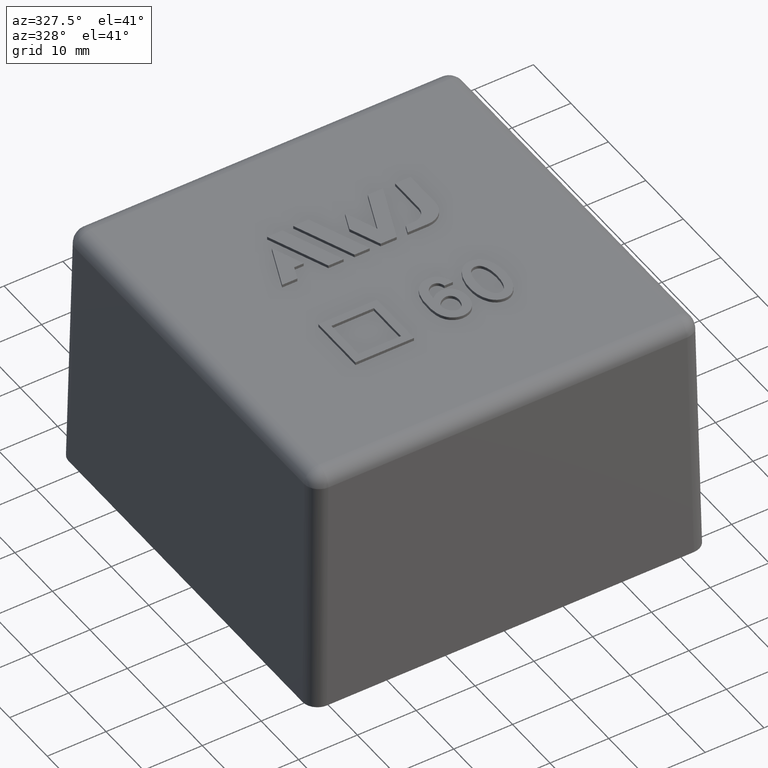
[diagram: clean part render]
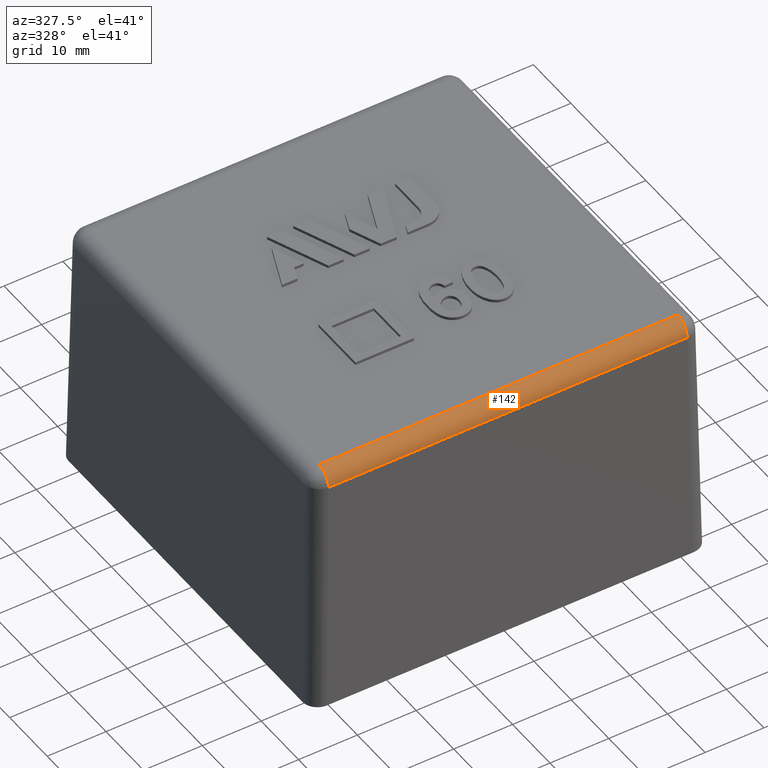
[diagram: same view with one face highlighted and labeled with its STEP entity id]
A machine part, auxiliary view. The second image highlights one B-rep face of the part: STEP entity #142.
In plain terms, the highlighted cylindrical surface (edge-blend (fillet) strip) has radius 2.5325 mm, axis along (-1, 0, 0).
Its self-contained STEP definition (entity closure, byte-faithful):
#142 = ADVANCED_FACE( '', ( #302 ), #303, .T. );
#302 = FACE_OUTER_BOUND( '', #479, .T. );
#303 = CYLINDRICAL_SURFACE( '', #480, 2.53250000000000 );
#479 = EDGE_LOOP( '', ( #1083, #1084, #1085, #1086 ) );
#480 = AXIS2_PLACEMENT_3D( '', #1087, #1088, #1089 );
#1083 = ORIENTED_EDGE( '', *, *, #1323, .T. );
#1084 = ORIENTED_EDGE( '', *, *, #1321, .F. );
#1085 = ORIENTED_EDGE( '', *, *, #1324, .F. );
#1086 = ORIENTED_EDGE( '', *, *, #1162, .F. );
#1087 = CARTESIAN_POINT( '', ( -33.7329000000000, -30.4927349983374, 40.5200000000000 ) );
#1088 = DIRECTION( '', ( -1.00000000000000, 0.000000000000000, 0.000000000000000 ) );
#1089 = DIRECTION( '', ( 0.000000000000000, 0.000000000000000, -1.00000000000000 ) );
#1162 = EDGE_CURVE( '', #1344, #1345, #1346, .F. );
#1321 = EDGE_CURVE( '', #1608, #1610, #1611, .F. );
#1323 = EDGE_CURVE( '', #1344, #1610, #1613, .T. );
#1324 = EDGE_CURVE( '', #1345, #1608, #1614, .T. );
#1344 = VERTEX_POINT( '', #1670 );
#1345 = VERTEX_POINT( '', #1671 );
#1346 = LINE( '', #1672, #1673 );
#1608 = VERTEX_POINT( '', #2201 );
#1610 = VERTEX_POINT( '', #2204 );
#1611 = LINE( '', #2205, #2206 );
#1613 = CIRCLE( '', #2209, 2.53250000000000 );
#1614 = CIRCLE( '', #2210, 2.53250000000000 );
#1670 = CARTESIAN_POINT( '', ( -30.4927349983374, -30.4927349983374, 43.0525000000000 ) );
#1671 = CARTESIAN_POINT( '', ( 30.4927349983374, -30.4927349983374, 43.0525000000000 ) );
#1672 = CARTESIAN_POINT( '', ( 30.4493015291943, -30.4927349983374, 43.0525000000000 ) );
#1673 = VECTOR( '', #2234, 1000.00000000000 );
#2201 = CARTESIAN_POINT( '', ( 30.4927349983374, -33.0248492863210, 40.5641982193024 ) );
#2204 = CARTESIAN_POINT( '', ( -30.4927349983374, -33.0248492863210, 40.5641982193024 ) );
#2205 = CARTESIAN_POINT( '', ( -30.4493015291943, -33.0248492863210, 40.5641982193024 ) );
#2206 = VECTOR( '', #2395, 1000.00000000000 );
#2209 = AXIS2_PLACEMENT_3D( '', #2397, #2398, #2399 );
#2210 = AXIS2_PLACEMENT_3D( '', #2400, #2401, #2402 );
#2234 = DIRECTION( '', ( -1.00000000000000, 0.000000000000000, 0.000000000000000 ) );
#2395 = DIRECTION( '', ( 1.00000000000000, 0.000000000000000, 0.000000000000000 ) );
#2397 = CARTESIAN_POINT( '', ( -30.4927349983374, -30.4927349983374, 40.5200000000000 ) );
#2398 = DIRECTION( '', ( 1.00000000000000, 0.000000000000000, 0.000000000000000 ) );
#2399 = DIRECTION( '', ( 0.000000000000000, 0.000000000000000, -1.00000000000000 ) );
#2400 = CARTESIAN_POINT( '', ( 30.4927349983374, -30.4927349983374, 40.5200000000000 ) );
#2401 = DIRECTION( '', ( 1.00000000000000, -1.38799017840850E-015, 0.000000000000000 ) );
#2402 = DIRECTION( '', ( 1.38799017840850E-015, 1.00000000000000, 0.000000000000000 ) );